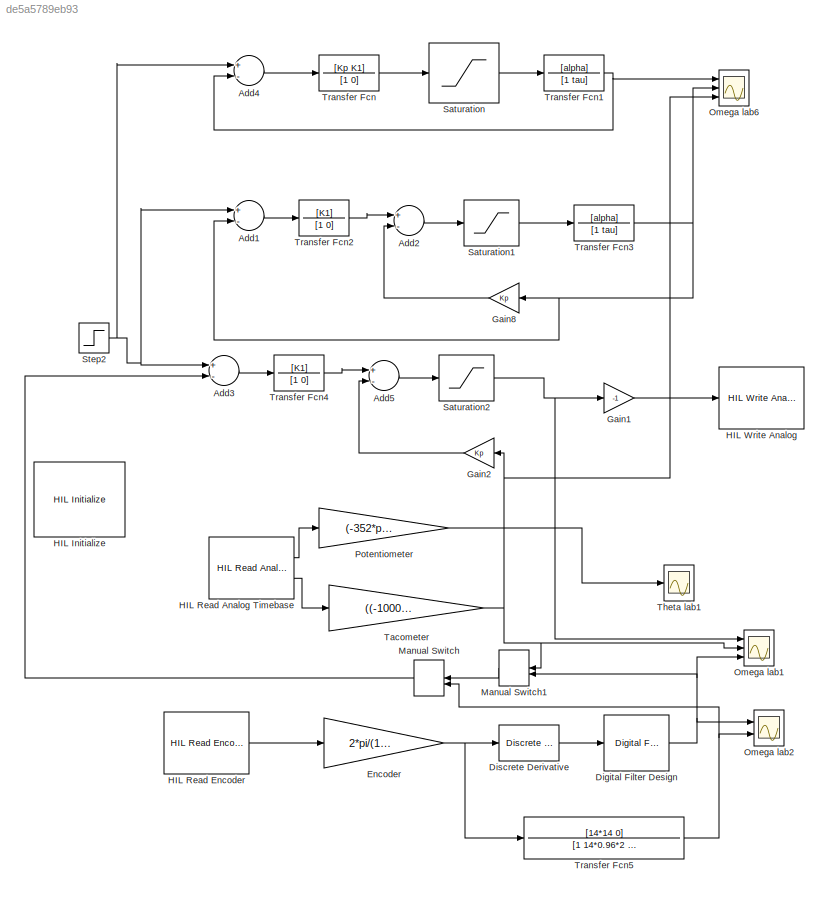
MODEL slx_de5a5789eb93
KIND model
CONFIG AbsTol = auto
CONFIG FixedStep = 0.001
CONFIG MaxStep = auto
CONFIG MinStep = auto
CONFIG RelTol = 1e-3
CONFIG SampleTimeConstraint = Unconstrained
CONFIG Solver = ode4
CONFIG SolverMode = Auto
CONFIG SolverName = ode4
CONFIG StartTime = 0.0
CONFIG StopTime = 7
BLOCK [Sum] Add1
  InputSameDT = off
  Inputs = +-
  OutDataTypeStr = Inherit: Inherit via internal rule
  Ports = [2, 1]
  SaturateOnIntegerOverflow = off
BLOCK [Sum] Add2
  InputSameDT = off
  Inputs = +-
  OutDataTypeStr = Inherit: Inherit via internal rule
  Ports = [2, 1]
  SaturateOnIntegerOverflow = off
BLOCK [Sum] Add3
  InputSameDT = off
  Inputs = +-
  OutDataTypeStr = Inherit: Inherit via internal rule
  Ports = [2, 1]
  SaturateOnIntegerOverflow = off
BLOCK [Sum] Add4
  InputSameDT = off
  Inputs = +-
  OutDataTypeStr = Inherit: Inherit via internal rule
  Ports = [2, 1]
  SaturateOnIntegerOverflow = off
BLOCK [Sum] Add5
  InputSameDT = off
  Inputs = +-
  OutDataTypeStr = Inherit: Inherit via internal rule
  Ports = [2, 1]
  SaturateOnIntegerOverflow = off
BLOCK [Reference] Digital Filter Design  REF=dsparch4/Digital
Filter Design
  Ports = [1, 1]
  SourceBlock = dsparch4/Digital\nFilter Design
  SourceType = Digital Filter Design
  UserDataPersistent = on
BLOCK [Reference] Discrete Derivative  REF=simulink/Discrete/Discrete Derivative
  Ports = [1, 1]
  SourceBlock = simulink/Discrete/Discrete Derivative
  SourceType = Discrete Derivative
BLOCK [Gain] Encoder
  Gain = 2*pi/(1024*4)
  OutDataTypeStr = Inherit: Inherit via internal rule
  ParamDataTypeStr = Inherit: Inherit via internal rule
  SaturateOnIntegerOverflow = off
BLOCK [Gain] Gain1
  Gain = -1
  OutDataTypeStr = Inherit: Inherit via internal rule
  ParamDataTypeStr = Inherit: Inherit via internal rule
  SaturateOnIntegerOverflow = off
BLOCK [Gain] Gain2
  Gain = Kp
  OutDataTypeStr = Inherit: Inherit via internal rule
  ParamDataTypeStr = Inherit: Inherit via internal rule
  SaturateOnIntegerOverflow = off
BLOCK [Gain] Gain8
  Gain = Kp
  OutDataTypeStr = Inherit: Inherit via internal rule
  ParamDataTypeStr = Inherit: Inherit via internal rule
  SaturateOnIntegerOverflow = off
BLOCK [Reference] HIL Initialize  REF=quarc_library/Data Acquisition/Generic/Configuration/HIL Initialize
  AttributesFormatString = %<object_name> (%<board_type>-%<board_number>)
  Ports = []
  Priority = -99
  SourceBlock = quarc_library/Data Acquisition/Generic/Configuration/HIL Initialize
  SourceType = HIL Initialize
  UserDataPersistent = on
BLOCK [Reference] HIL Read Analog Timebase  REF=quarc_library/Data Acquisition/Generic/Timebases/HIL Read Analog
Timebase
  AttributesFormatString = (%<object_name>)
  Ports = [0, 2]
  SourceBlock = quarc_library/Data Acquisition/Generic/Timebases/HIL Read Analog\nTimebase
  SourceType = HIL Read Analog Timebase
  UserDataPersistent = on
BLOCK [Reference] HIL Read Encoder  REF=quarc_library/Data Acquisition/Generic/Immediate I//O/HIL Read Encoder
  AttributesFormatString = (%<object_name>)
  Ports = [0, 1]
  SourceBlock = quarc_library/Data Acquisition/Generic/Immediate I//O/HIL Read Encoder
  SourceType = HIL Read Encoder
  UserDataPersistent = on
BLOCK [Reference] HIL Write Analog  REF=quarc_library/Data Acquisition/Generic/Immediate I//O/HIL Write Analog
  AttributesFormatString = (%<object_name>)
  Ports = [1]
  SourceBlock = quarc_library/Data Acquisition/Generic/Immediate I//O/HIL Write Analog
  SourceType = HIL Write Analog
  UserDataPersistent = on
BLOCK [ManualSwitch] Manual Switch
  CurrentSetting = 0
BLOCK [ManualSwitch] Manual Switch1
BLOCK [Scope] Omega lab1
  NumInputPorts = 3
  Ports = [3]
  ScopeSpecificationString = Simulink.scopes.TimeScopeBlockCfg('CurrentConfiguration', extmgr.ConfigurationSet(extmgr.Configuration('Core','General UI',true),extmgr.Configuration('Core','Source UI',true),extmgr.Configuration('Sources','WiredSimulink',true,'DataLoggingVariableName','ScopeData2'),extmgr.Configuration('Visuals','Time Domain',true,'SerializedDisplays',{struct('MinYLimReal','-0.02319','MaxYLimReal','0.18198','YLab...<+1511ch>
BLOCK [Scope] Omega lab2
  NumInputPorts = 2
  Ports = [2]
  ScopeSpecificationString = Simulink.scopes.TimeScopeBlockCfg('CurrentConfiguration', extmgr.ConfigurationSet(extmgr.Configuration('Core','General UI',true),extmgr.Configuration('Core','Source UI',true),extmgr.Configuration('Sources','WiredSimulink',true,'DataLoggingVariableName','ScopeData3'),extmgr.Configuration('Visuals','Time Domain',true,'SerializedDisplays',{struct('MinYLimReal','-0.01368','MaxYLimReal','0.09645','YLab...<+1499ch>
BLOCK [Scope] Omega lab6
  NumInputPorts = 3
  Ports = [3]
  ScopeSpecificationString = Simulink.scopes.TimeScopeBlockCfg('CurrentConfiguration', extmgr.ConfigurationSet(extmgr.Configuration('Core','General UI',true),extmgr.Configuration('Core','Source UI',true),extmgr.Configuration('Sources','WiredSimulink',true,'DataLoggingVariableName','ScopeData1'),extmgr.Configuration('Visuals','Time Domain',true,'SerializedDisplays',{struct('MinYLimReal','-0.50586','MaxYLimReal','4.5375','YLabe...<+1500ch>
BLOCK [Gain] Potentiometer
  Gain = (-352*pi/180)/10
  OutDataTypeStr = Inherit: Inherit via internal rule
  ParamDataTypeStr = Inherit: Inherit via internal rule
  SaturateOnIntegerOverflow = off
BLOCK [Saturate] Saturation
  InputPortMap = u0
  LowerLimit = -10
  Ports = [1, 1]
  UpperLimit = 10
BLOCK [Saturate] Saturation1
  InputPortMap = u0
  LowerLimit = -10
  Ports = [1, 1]
  UpperLimit = 10
BLOCK [Saturate] Saturation2
  InputPortMap = u0
  LowerLimit = -10
  Ports = [1, 1]
  UpperLimit = 10
BLOCK [Step] Step2
  After = 7.5
  SampleTime = 0
  Time = 0.01
BLOCK [Gain] Tacometer
  Gain = ((-1000*2*pi/60)/1.5)/Kg
  OutDataTypeStr = Inherit: Inherit via internal rule
  ParamDataTypeStr = Inherit: Inherit via internal rule
  SaturateOnIntegerOverflow = off
BLOCK [Scope] Theta lab1
  Ports = [1]
  ScopeSpecificationString = Simulink.scopes.TimeScopeBlockCfg('CurrentConfiguration', extmgr.ConfigurationSet(extmgr.Configuration('Core','General UI',true),extmgr.Configuration('Core','Source UI',true),extmgr.Configuration('Sources','WiredSimulink',true),extmgr.Configuration('Visuals','Time Domain',true,'SerializedDisplays',{struct('MinYLimReal','-1.33413','MaxYLimReal','-1.25','YLabelReal','','MinYLimMag','0.00000','MaxYLi...<+1360ch>
BLOCK [TransferFcn] Transfer Fcn
  Denominator = [1 0]
  Numerator = [Kp K1]
BLOCK [TransferFcn] Transfer Fcn1
  Denominator = [1 tau]
  Numerator = [alpha]
BLOCK [TransferFcn] Transfer Fcn2
  Denominator = [1 0]
  Numerator = [K1]
BLOCK [TransferFcn] Transfer Fcn3
  Denominator = [1 tau]
  Numerator = [alpha]
BLOCK [TransferFcn] Transfer Fcn4
  Denominator = [1 0]
  Numerator = [K1]
BLOCK [TransferFcn] Transfer Fcn5
  Denominator = [1 14*0.96*2 14*14]
  Numerator = [14*14 0]
LINE Add1:1 -> Transfer Fcn2:1
LINE Add2:1 -> Saturation1:1
LINE Add3:1 -> Transfer Fcn4:1
LINE Add4:1 -> Transfer Fcn:1
LINE Add5:1 -> Saturation2:1
NET Digital Filter Design:1 -> Manual Switch1:2, Omega lab1:3, Omega lab2:1
LINE Discrete Derivative:1 -> Digital Filter Design:1
NET Encoder:1 -> Discrete Derivative:1, Transfer Fcn5:1
LINE Gain1:1 -> HIL Write Analog:1
LINE Gain2:1 -> Add5:2
LINE Gain8:1 -> Add2:2
LINE HIL Read Analog Timebase:1 -> Potentiometer:1
LINE HIL Read Analog Timebase:2 -> Tacometer:1
LINE HIL Read Encoder:1 -> Encoder:1
LINE Manual Switch1:1 -> Manual Switch:1
LINE Manual Switch:1 -> Add3:2
LINE Potentiometer:1 -> Theta lab1:1
LINE Saturation1:1 -> Transfer Fcn3:1
NET Saturation2:1 -> Gain1:1, Omega lab1:1
LINE Saturation:1 -> Transfer Fcn1:1
NET Step2:1 -> Add1:1, Add3:1, Add4:1
NET Tacometer:1 -> Gain2:1, Manual Switch1:1, Omega lab1:2, Omega lab6:3
NET Transfer Fcn1:1 -> Add4:2, Omega lab6:1
LINE Transfer Fcn2:1 -> Add2:1
NET Transfer Fcn3:1 -> Add1:2, Gain8:1, Omega lab6:2
LINE Transfer Fcn4:1 -> Add5:1
NET Transfer Fcn5:1 -> Manual Switch:2, Omega lab2:2
LINE Transfer Fcn:1 -> Saturation:1
note: NET lines group one-source signal fan-out (src -> all destinations, sorted); 1:1 wires keep LINE
